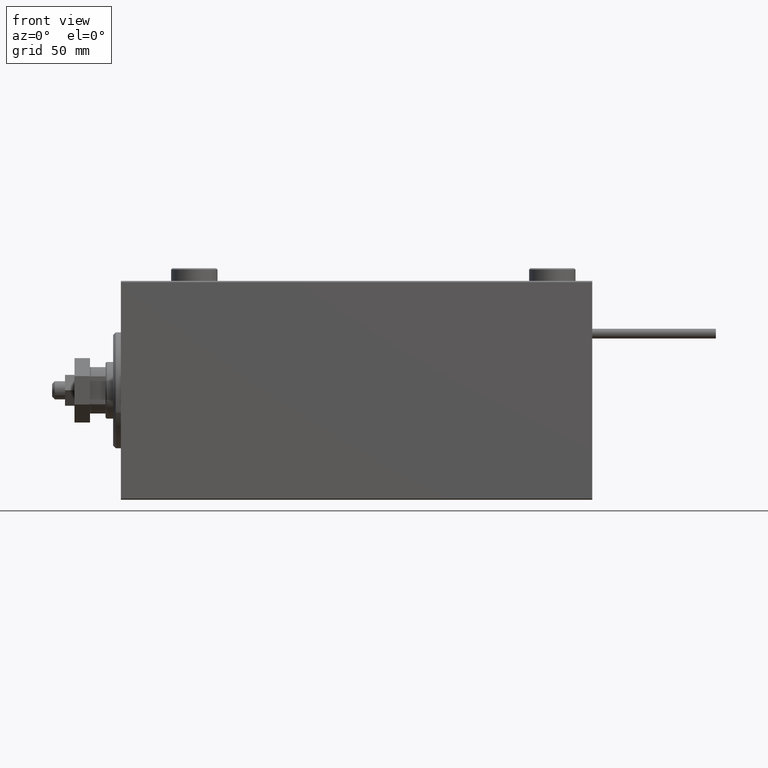
[diagram: clean part render]
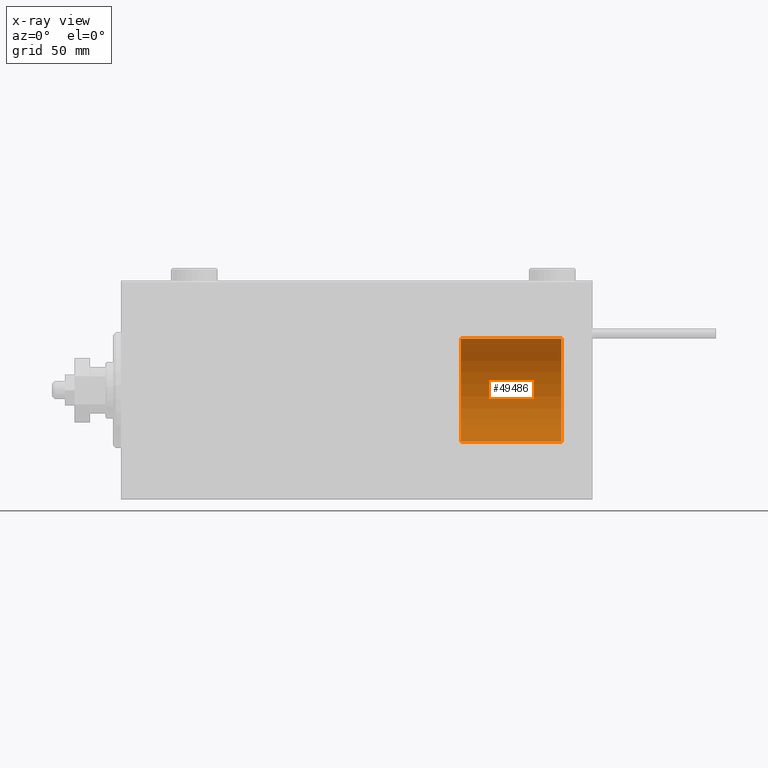
[diagram: x-ray — body ghosted, one internal face saturated and labeled with its STEP entity id]
A machine part, front view, then the same camera in x-ray: the body is ghosted and one INTERNAL B-rep face — a face not visible from any outside direction — is saturated and labeled: STEP entity #49486.
In plain terms, the highlighted cylindrical surface (partial cylindrical patch) has radius 20 mm, axis along (1, -0, -0).
Its self-contained STEP definition (entity closure, byte-faithful):
#629 = CIRCLE ( 'NONE', #12298, 20.00000000000000000 ) ;
#1459 = EDGE_CURVE ( 'NONE', #19477, #19335, #24364, .T. ) ;
#3920 = CARTESIAN_POINT ( 'NONE',  ( 20.00000000000000000, 2.449293598294706513E-15, 0.000000000000000000 ) ) ;
#4163 = FACE_OUTER_BOUND ( 'NONE', #37844, .T. ) ;
#5019 = CARTESIAN_POINT ( 'NONE',  ( 20.00000000000000000, 2.449293598294706513E-15, 39.00000000000000000 ) ) ;
#7413 = DIRECTION ( 'NONE',  ( -0.000000000000000000, -0.000000000000000000, -1.000000000000000000 ) ) ;
#8226 = VERTEX_POINT ( 'NONE', #28207 ) ;
#8250 = ORIENTED_EDGE ( 'NONE', *, *, #10568, .F. ) ;
#10195 = CARTESIAN_POINT ( 'NONE',  ( -20.00000000000000000, 0.000000000000000000, 0.000000000000000000 ) ) ;
#10319 = DIRECTION ( 'NONE',  ( 0.000000000000000000, 0.000000000000000000, 1.000000000000000000 ) ) ;
#10568 = EDGE_CURVE ( 'NONE', #8226, #19335, #41957, .T. ) ;
#10575 = DIRECTION ( 'NONE',  ( 1.000000000000000000, 0.000000000000000000, 0.000000000000000000 ) ) ;
#11065 = LINE ( 'NONE', #46753, #32161 ) ;
#11226 = CARTESIAN_POINT ( 'NONE',  ( 0.000000000000000000, 0.000000000000000000, 39.00000000000000000 ) ) ;
#12298 = AXIS2_PLACEMENT_3D ( 'NONE', #27317, #51025, #47109 ) ;
#14790 = EDGE_CURVE ( 'NONE', #33628, #19477, #11065, .T. ) ;
#17464 = EDGE_CURVE ( 'NONE', #33628, #8226, #629, .T. ) ;
#18503 = CARTESIAN_POINT ( 'NONE',  ( -20.00000000000000000, 0.000000000000000000, 39.00000000000000000 ) ) ;
#19322 = ORIENTED_EDGE ( 'NONE', *, *, #14790, .T. ) ;
#19335 = VERTEX_POINT ( 'NONE', #10195 ) ;
#19477 = VERTEX_POINT ( 'NONE', #3920 ) ;
#20191 = AXIS2_PLACEMENT_3D ( 'NONE', #26212, #10319, #10575 ) ;
#24364 = CIRCLE ( 'NONE', #20191, 20.00000000000000000 ) ;
#26212 = CARTESIAN_POINT ( 'NONE',  ( 0.000000000000000000, 0.000000000000000000, 0.000000000000000000 ) ) ;
#27121 = DIRECTION ( 'NONE',  ( -0.000000000000000000, -0.000000000000000000, -1.000000000000000000 ) ) ;
#27317 = CARTESIAN_POINT ( 'NONE',  ( 0.000000000000000000, 0.000000000000000000, 39.00000000000000000 ) ) ;
#28207 = CARTESIAN_POINT ( 'NONE',  ( -20.00000000000000000, 0.000000000000000000, 39.00000000000000000 ) ) ;
#30778 = DIRECTION ( 'NONE',  ( -0.000000000000000000, -0.000000000000000000, -1.000000000000000000 ) ) ;
#32161 = VECTOR ( 'NONE', #7413, 1000.000000000000000 ) ;
#33628 = VERTEX_POINT ( 'NONE', #5019 ) ;
#37844 = EDGE_LOOP ( 'NONE', ( #48122, #19322, #51014, #8250 ) ) ;
#41957 = LINE ( 'NONE', #18503, #42061 ) ;
#42061 = VECTOR ( 'NONE', #30778, 1000.000000000000000 ) ;
#42999 = DIRECTION ( 'NONE',  ( -1.000000000000000000, 0.000000000000000000, 0.000000000000000000 ) ) ;
#46753 = CARTESIAN_POINT ( 'NONE',  ( 20.00000000000000000, 2.449293598294706513E-15, 39.00000000000000000 ) ) ;
#46921 = CYLINDRICAL_SURFACE ( 'NONE', #47948, 20.00000000000000000 ) ;
#47109 = DIRECTION ( 'NONE',  ( 1.000000000000000000, 0.000000000000000000, 0.000000000000000000 ) ) ;
#47948 = AXIS2_PLACEMENT_3D ( 'NONE', #11226, #27121, #42999 ) ;
#48122 = ORIENTED_EDGE ( 'NONE', *, *, #17464, .F. ) ;
#49486 = ADVANCED_FACE ( 'NONE', ( #4163 ), #46921, .T. ) ;
#51014 = ORIENTED_EDGE ( 'NONE', *, *, #1459, .T. ) ;
#51025 = DIRECTION ( 'NONE',  ( 0.000000000000000000, 0.000000000000000000, 1.000000000000000000 ) ) ;